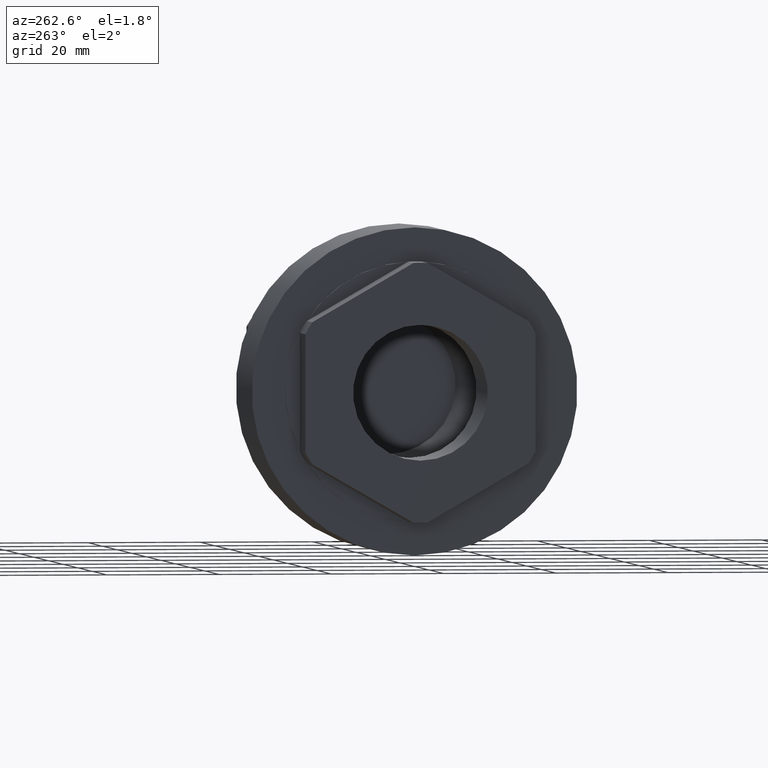
[diagram: clean part render]
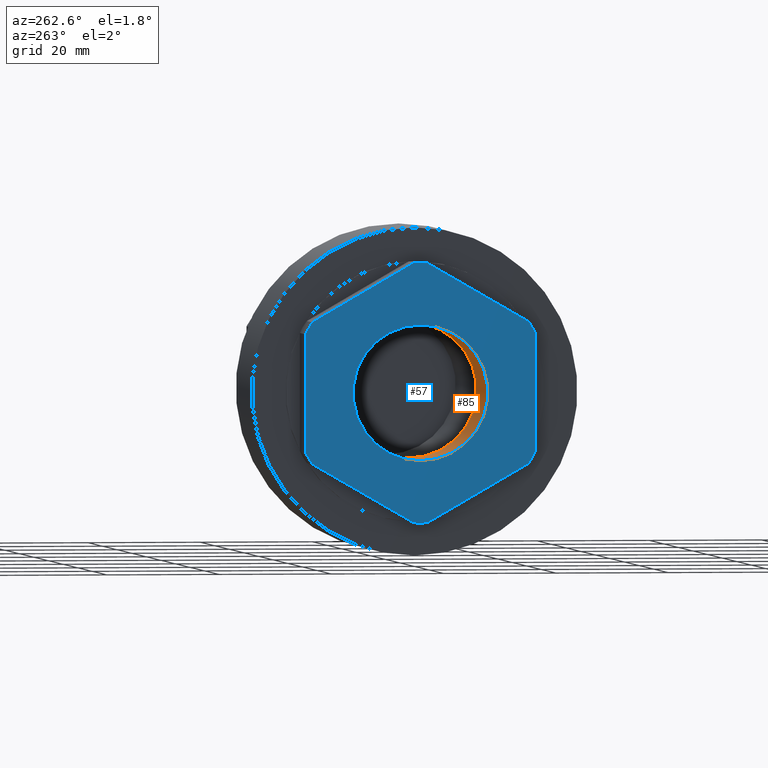
[diagram: same view with the hole feature highlighted: cylindrical wall and planar end face, labeled with their STEP entity ids]
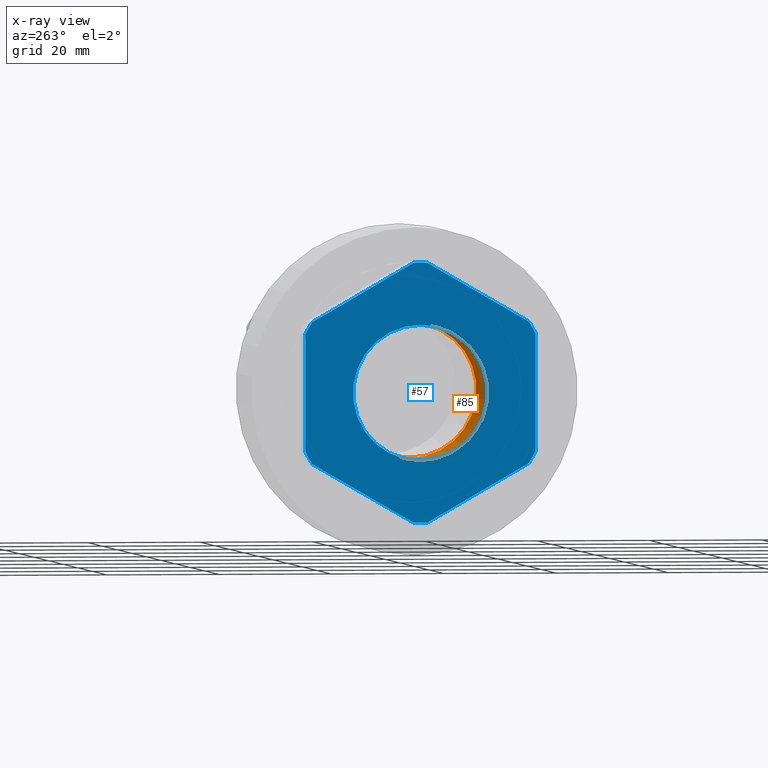
[diagram: x-ray of the same camera — body ghosted, the hole faces saturated]
A machine part, auxiliary view. The highlighted faces form one hole feature of diameter 24 mm: the cylindrical wall (entity #85, orange) and its adjacent planar end face (entity #57, blue) — they share a circular edge in the B-rep.
The next image is the same camera in x-ray (body ghosted, the hole faces saturated) — the bore reads through the body.
Wall:
#85 = ADVANCED_FACE( '', ( #180, #181 ), #182, .F. );
#180 = FACE_OUTER_BOUND( '', #279, .T. );
#181 = FACE_OUTER_BOUND( '', #280, .T. );
#182 = CYLINDRICAL_SURFACE( '', #281, 12.0000000000000 );
#279 = EDGE_LOOP( '', ( #436 ) );
#280 = EDGE_LOOP( '', ( #437 ) );
#281 = AXIS2_PLACEMENT_3D( '', #438, #439, #440 );
#436 = ORIENTED_EDGE( '', *, *, #548, .F. );
#437 = ORIENTED_EDGE( '', *, *, #559, .T. );
#438 = CARTESIAN_POINT( '', ( 38.3031897014172, 0.000000000000000, 0.000000000000000 ) );
#439 = DIRECTION( '', ( -1.00000000000000, -0.000000000000000, -0.000000000000000 ) );
#440 = DIRECTION( '', ( 0.000000000000000, 0.000000000000000, -1.00000000000000 ) );
#548 = EDGE_CURVE( '', #645, #645, #646, .T. );
#559 = EDGE_CURVE( '', #663, #663, #664, .T. );
#645 = VERTEX_POINT( '', #773 );
#646 = CIRCLE( '', #774, 12.0000000000000 );
#663 = VERTEX_POINT( '', #792 );
#664 = CIRCLE( '', #793, 12.0000000000000 );
#773 = CARTESIAN_POINT( '', ( -8.00000000000000, 0.000000000000000, -12.0000000000000 ) );
#774 = AXIS2_PLACEMENT_3D( '', #901, #902, #903 );
#792 = CARTESIAN_POINT( '', ( 7.53394364031421, 0.000000000000000, -12.0000000000000 ) );
#793 = AXIS2_PLACEMENT_3D( '', #920, #921, #922 );
#901 = CARTESIAN_POINT( '', ( -8.00000000000000, 0.000000000000000, 0.000000000000000 ) );
#902 = DIRECTION( '', ( 1.00000000000000, 0.000000000000000, 0.000000000000000 ) );
#903 = DIRECTION( '', ( 0.000000000000000, 0.000000000000000, -1.00000000000000 ) );
#920 = CARTESIAN_POINT( '', ( 7.53394364031421, 0.000000000000000, 0.000000000000000 ) );
#921 = DIRECTION( '', ( 1.00000000000000, 0.000000000000000, 0.000000000000000 ) );
#922 = DIRECTION( '', ( 0.000000000000000, 0.000000000000000, -1.00000000000000 ) );
End face:
#57 = ADVANCED_FACE( '', ( #131, #132 ), #133, .F. );
#131 = FACE_OUTER_BOUND( '', #230, .T. );
#132 = FACE_BOUND( '', #231, .T. );
#133 = PLANE( '', #232 );
#230 = EDGE_LOOP( '', ( #334, #335, #336, #337, #338, #339, #340, #341, #342, #343, #344, #345 ) );
#231 = EDGE_LOOP( '', ( #346 ) );
#232 = AXIS2_PLACEMENT_3D( '', #347, #348, #349 );
#334 = ORIENTED_EDGE( '', *, *, #537, .F. );
#335 = ORIENTED_EDGE( '', *, *, #538, .F. );
#336 = ORIENTED_EDGE( '', *, *, #539, .F. );
#337 = ORIENTED_EDGE( '', *, *, #529, .F. );
#338 = ORIENTED_EDGE( '', *, *, #540, .F. );
#339 = ORIENTED_EDGE( '', *, *, #541, .F. );
#340 = ORIENTED_EDGE( '', *, *, #542, .F. );
#341 = ORIENTED_EDGE( '', *, *, #543, .F. );
#342 = ORIENTED_EDGE( '', *, *, #544, .F. );
#343 = ORIENTED_EDGE( '', *, *, #545, .F. );
#344 = ORIENTED_EDGE( '', *, *, #546, .F. );
#345 = ORIENTED_EDGE( '', *, *, #547, .F. );
#346 = ORIENTED_EDGE( '', *, *, #548, .T. );
#347 = CARTESIAN_POINT( '', ( -8.00000000000000, 0.000000000000000, -12.0000000000000 ) );
#348 = DIRECTION( '', ( 1.00000000000000, 0.000000000000000, 0.000000000000000 ) );
#349 = DIRECTION( '', ( 0.000000000000000, 0.000000000000000, -1.00000000000000 ) );
#529 = EDGE_CURVE( '', #610, #611, #612, .T. );
#537 = EDGE_CURVE( '', #624, #625, #626, .T. );
#538 = EDGE_CURVE( '', #627, #624, #628, .T. );
#539 = EDGE_CURVE( '', #611, #627, #629, .T. );
#540 = EDGE_CURVE( '', #630, #610, #631, .T. );
#541 = EDGE_CURVE( '', #632, #630, #633, .T. );
#542 = EDGE_CURVE( '', #634, #632, #635, .T. );
#543 = EDGE_CURVE( '', #636, #634, #637, .T. );
#544 = EDGE_CURVE( '', #638, #636, #639, .T. );
#545 = EDGE_CURVE( '', #640, #638, #641, .T. );
#546 = EDGE_CURVE( '', #642, #640, #643, .T. );
#547 = EDGE_CURVE( '', #625, #642, #644, .T. );
#548 = EDGE_CURVE( '', #645, #645, #646, .T. );
#610 = VERTEX_POINT( '', #728 );
#611 = VERTEX_POINT( '', #729 );
#612 = LINE( '', #730, #731 );
#624 = VERTEX_POINT( '', #747 );
#625 = VERTEX_POINT( '', #748 );
#626 = CIRCLE( '', #749, 23.0000000000000 );
#627 = VERTEX_POINT( '', #750 );
#628 = LINE( '', #751, #752 );
#629 = CIRCLE( '', #753, 23.0000000000000 );
#630 = VERTEX_POINT( '', #754 );
#631 = CIRCLE( '', #755, 23.0000000000000 );
#632 = VERTEX_POINT( '', #756 );
#633 = LINE( '', #757, #758 );
#634 = VERTEX_POINT( '', #759 );
#635 = CIRCLE( '', #760, 23.0000000000000 );
#636 = VERTEX_POINT( '', #761 );
#637 = LINE( '', #762, #763 );
#638 = VERTEX_POINT( '', #764 );
#639 = CIRCLE( '', #765, 23.0000000000000 );
#640 = VERTEX_POINT( '', #766 );
#641 = LINE( '', #767, #768 );
#642 = VERTEX_POINT( '', #769 );
#643 = CIRCLE( '', #770, 23.0000000000000 );
#644 = LINE( '', #771, #772 );
#645 = VERTEX_POINT( '', #773 );
#646 = CIRCLE( '', #774, 12.0000000000000 );
#728 = CARTESIAN_POINT( '', ( -8.00000000000000, -20.5000000000000, 10.4283268073071 ) );
#729 = CARTESIAN_POINT( '', ( -8.00000000000000, -20.5000000000000, -10.4283268073071 ) );
#730 = CARTESIAN_POINT( '', ( -8.00000000000000, -20.5000000000000, 10.4283268073071 ) );
#731 = VECTOR( '', #870, 1000.00000000000 );
#747 = CARTESIAN_POINT( '', ( -8.00000000000000, -1.21880406590578, -22.9676841812345 ) );
#748 = CARTESIAN_POINT( '', ( -8.00000000000000, 1.21880406590578, -22.9676841812345 ) );
#749 = AXIS2_PLACEMENT_3D( '', #878, #879, #880 );
#750 = CARTESIAN_POINT( '', ( -8.00000000000000, -19.2811959340942, -12.5393573739275 ) );
#751 = CARTESIAN_POINT( '', ( -8.00000000000000, -19.2811959340942, -12.5393573739275 ) );
#752 = VECTOR( '', #881, 1000.00000000000 );
#753 = AXIS2_PLACEMENT_3D( '', #882, #883, #884 );
#754 = CARTESIAN_POINT( '', ( -8.00000000000000, -19.2811959340942, 12.5393573739274 ) );
#755 = AXIS2_PLACEMENT_3D( '', #885, #886, #887 );
#756 = CARTESIAN_POINT( '', ( -8.00000000000000, -1.21880406590584, 22.9676841812345 ) );
#757 = CARTESIAN_POINT( '', ( -8.00000000000000, -1.21880406590580, 22.9676841812345 ) );
#758 = VECTOR( '', #888, 999.999999999999 );
#759 = CARTESIAN_POINT( '', ( -8.00000000000000, 1.21880406590579, 22.9676841812345 ) );
#760 = AXIS2_PLACEMENT_3D( '', #889, #890, #891 );
#761 = CARTESIAN_POINT( '', ( -8.00000000000000, 19.2811959340942, 12.5393573739275 ) );
#762 = CARTESIAN_POINT( '', ( -8.00000000000000, 19.2811959340942, 12.5393573739275 ) );
#763 = VECTOR( '', #892, 1000.00000000000 );
#764 = CARTESIAN_POINT( '', ( -8.00000000000000, 20.5000000000000, 10.4283268073071 ) );
#765 = AXIS2_PLACEMENT_3D( '', #893, #894, #895 );
#766 = CARTESIAN_POINT( '', ( -8.00000000000000, 20.5000000000000, -10.4283268073070 ) );
#767 = CARTESIAN_POINT( '', ( -8.00000000000000, 20.5000000000000, -10.4283268073071 ) );
#768 = VECTOR( '', #896, 1000.00000000000 );
#769 = CARTESIAN_POINT( '', ( -8.00000000000000, 19.2811959340942, -12.5393573739274 ) );
#770 = AXIS2_PLACEMENT_3D( '', #897, #898, #899 );
#771 = CARTESIAN_POINT( '', ( -8.00000000000000, 1.21880406590578, -22.9676841812345 ) );
#772 = VECTOR( '', #900, 1000.00000000000 );
#773 = CARTESIAN_POINT( '', ( -8.00000000000000, 0.000000000000000, -12.0000000000000 ) );
#774 = AXIS2_PLACEMENT_3D( '', #901, #902, #903 );
#870 = DIRECTION( '', ( 0.000000000000000, 0.000000000000000, -1.00000000000000 ) );
#878 = CARTESIAN_POINT( '', ( -8.00000000000000, 0.000000000000000, 0.000000000000000 ) );
#879 = DIRECTION( '', ( 1.00000000000000, 0.000000000000000, 0.000000000000000 ) );
#880 = DIRECTION( '', ( 0.000000000000000, 0.000000000000000, -1.00000000000000 ) );
#881 = DIRECTION( '', ( 0.000000000000000, 0.866025403784439, -0.500000000000000 ) );
#882 = CARTESIAN_POINT( '', ( -8.00000000000000, 0.000000000000000, 0.000000000000000 ) );
#883 = DIRECTION( '', ( 1.00000000000000, 0.000000000000000, 0.000000000000000 ) );
#884 = DIRECTION( '', ( 0.000000000000000, 0.000000000000000, -1.00000000000000 ) );
#885 = CARTESIAN_POINT( '', ( -8.00000000000000, 0.000000000000000, 0.000000000000000 ) );
#886 = DIRECTION( '', ( 1.00000000000000, 0.000000000000000, 0.000000000000000 ) );
#887 = DIRECTION( '', ( 0.000000000000000, 0.000000000000000, -1.00000000000000 ) );
#888 = DIRECTION( '', ( 0.000000000000000, -0.866025403784438, -0.500000000000000 ) );
#889 = CARTESIAN_POINT( '', ( -8.00000000000000, 0.000000000000000, 0.000000000000000 ) );
#890 = DIRECTION( '', ( 1.00000000000000, 0.000000000000000, 0.000000000000000 ) );
#891 = DIRECTION( '', ( 0.000000000000000, 0.000000000000000, -1.00000000000000 ) );
#892 = DIRECTION( '', ( 0.000000000000000, -0.866025403784439, 0.500000000000000 ) );
#893 = CARTESIAN_POINT( '', ( -8.00000000000000, 0.000000000000000, 0.000000000000000 ) );
#894 = DIRECTION( '', ( 1.00000000000000, 0.000000000000000, 0.000000000000000 ) );
#895 = DIRECTION( '', ( 0.000000000000000, 0.000000000000000, -1.00000000000000 ) );
#896 = DIRECTION( '', ( 0.000000000000000, 0.000000000000000, 1.00000000000000 ) );
#897 = CARTESIAN_POINT( '', ( -8.00000000000000, 0.000000000000000, 0.000000000000000 ) );
#898 = DIRECTION( '', ( 1.00000000000000, 0.000000000000000, 0.000000000000000 ) );
#899 = DIRECTION( '', ( 0.000000000000000, 0.000000000000000, -1.00000000000000 ) );
#900 = DIRECTION( '', ( 0.000000000000000, 0.866025403784439, 0.500000000000000 ) );
#901 = CARTESIAN_POINT( '', ( -8.00000000000000, 0.000000000000000, 0.000000000000000 ) );
#902 = DIRECTION( '', ( 1.00000000000000, 0.000000000000000, 0.000000000000000 ) );
#903 = DIRECTION( '', ( 0.000000000000000, 0.000000000000000, -1.00000000000000 ) );